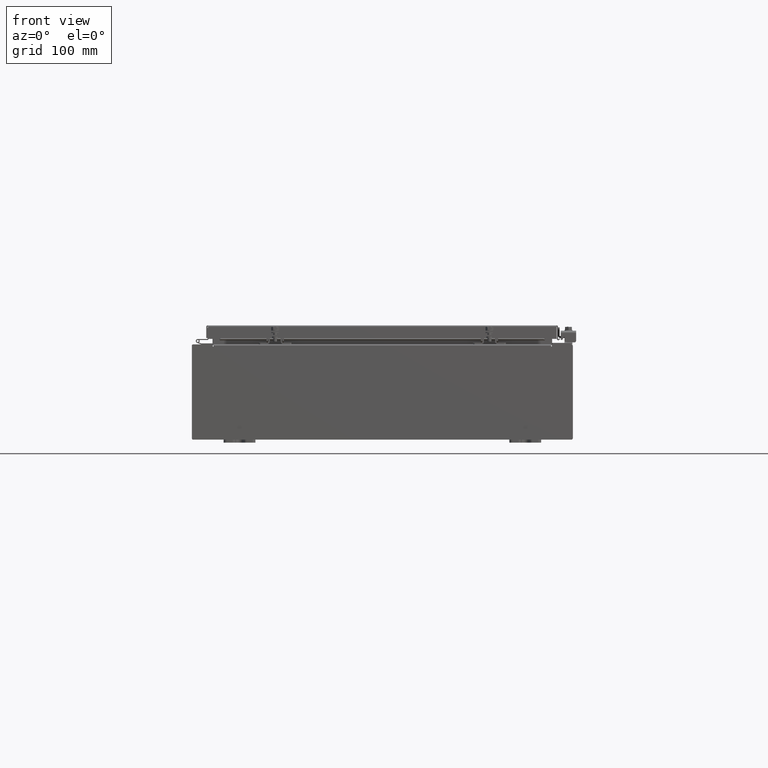
[diagram: clean part render]
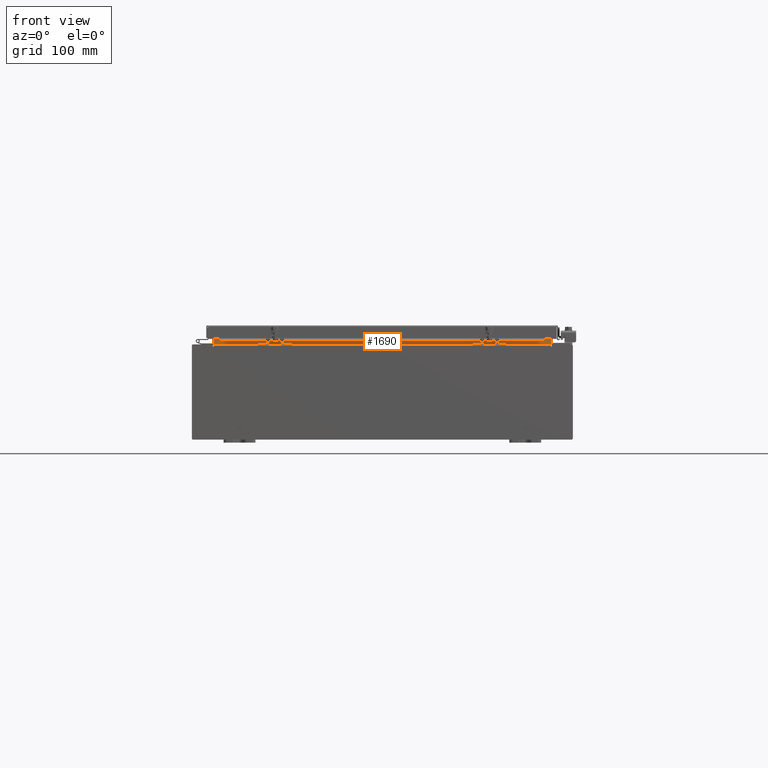
[diagram: same view with one face highlighted and labeled with its STEP entity id]
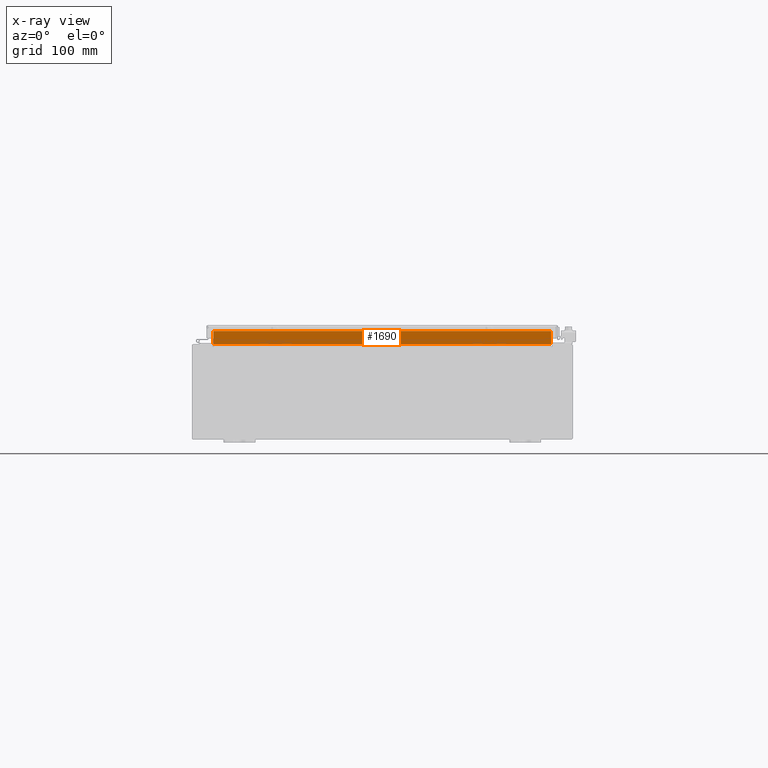
[diagram: x-ray of the same camera — body ghosted, the highlighted face saturated]
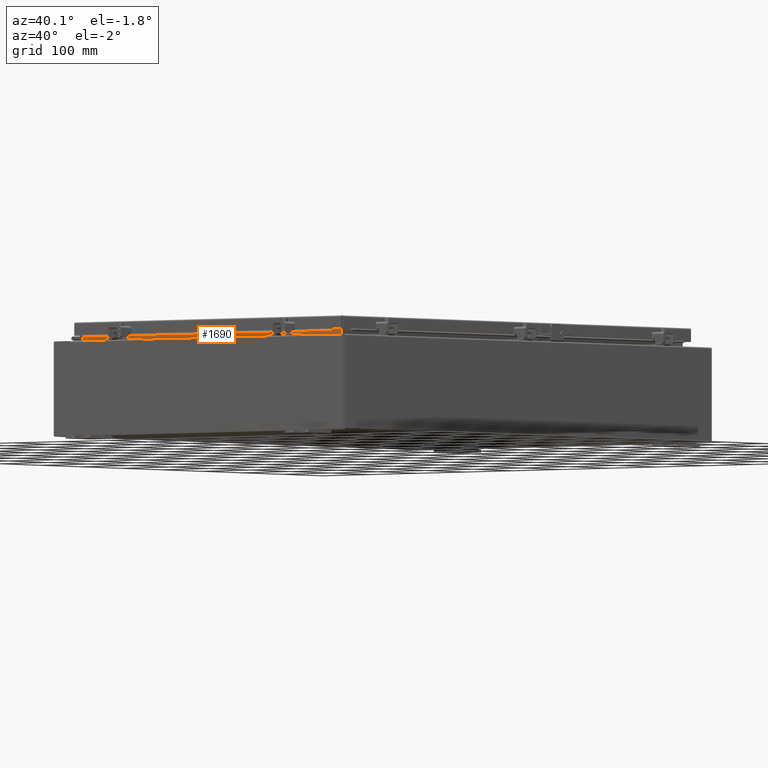
[diagram: same view with one face highlighted and labeled with its STEP entity id]
A machine part, front view. The second image highlights one B-rep face of the part: STEP entity #1690.
The next image is the same camera in x-ray: the body ghosted, the highlighted face saturated — about 0% of this face is hidden behind the body in this view.
A second angle (auxiliary view) of the same face is appended — the face is thin or edge-on in the first view.
In plain terms, the highlighted planar face has unit normal (0, -1, 0).
Its self-contained STEP definition (entity closure, byte-faithful):
#1363 = VERTEX_POINT ( 'NONE', #41265 ) ;
#1690 = ADVANCED_FACE ( 'NONE', ( #28186 ), #34851, .T. ) ;
#1901 = AXIS2_PLACEMENT_3D ( 'NONE', #11969, #41191, #41458 ) ;
#3140 = VERTEX_POINT ( 'NONE', #31091 ) ;
#6239 = CARTESIAN_POINT ( 'NONE',  ( 10.63720000000000200, -1.300299999999999800, 3.925300000000005300 ) ) ;
#7043 = ORIENTED_EDGE ( 'NONE', *, *, #12287, .F. ) ;
#7619 = DIRECTION ( 'NONE',  ( -0.0000000000000000000, -0.0000000000000000000, -1.000000000000000000 ) ) ;
#8341 = VERTEX_POINT ( 'NONE', #9733 ) ;
#8434 = VERTEX_POINT ( 'NONE', #18861 ) ;
#9616 = LINE ( 'NONE', #37137, #16846 ) ;
#9733 = CARTESIAN_POINT ( 'NONE',  ( -10.63720000000000400, -1.300299999999999800, 3.013000000000004800 ) ) ;
#11969 = CARTESIAN_POINT ( 'NONE',  ( 0.0000000000000000000, -1.300299999999999800, 0.0000000000000000000 ) ) ;
#12287 = EDGE_CURVE ( 'NONE', #8434, #1363, #20471, .T. ) ;
#13279 = DIRECTION ( 'NONE',  ( -1.000000000000000000, -0.0000000000000000000, -0.0000000000000000000 ) ) ;
#13691 = EDGE_CURVE ( 'NONE', #3140, #8341, #15890, .T. ) ;
#15323 = EDGE_LOOP ( 'NONE', ( #28243, #40224, #7043, #30441 ) ) ;
#15663 = CARTESIAN_POINT ( 'NONE',  ( -10.63720000000000200, -1.300299999999999800, 3.000000000000005300 ) ) ;
#15890 = LINE ( 'NONE', #15663, #20078 ) ;
#16846 = VECTOR ( 'NONE', #13279, 39.37007874015748100 ) ;
#17525 = EDGE_CURVE ( 'NONE', #1363, #3140, #9616, .T. ) ;
#18861 = CARTESIAN_POINT ( 'NONE',  ( 10.63720000000000400, -1.300299999999999800, 3.013000000000004800 ) ) ;
#20078 = VECTOR ( 'NONE', #7619, 39.37007874015748100 ) ;
#20471 = LINE ( 'NONE', #6239, #21181 ) ;
#20840 = DIRECTION ( 'NONE',  ( 1.000000000000000000, 0.0000000000000000000, -5.136404305013091600E-017 ) ) ;
#21071 = LINE ( 'NONE', #33698, #28767 ) ;
#21181 = VECTOR ( 'NONE', #25451, 39.37007874015748100 ) ;
#25451 = DIRECTION ( 'NONE',  ( -0.0000000000000000000, -0.0000000000000000000, 1.000000000000000000 ) ) ;
#28186 = FACE_OUTER_BOUND ( 'NONE', #15323, .T. ) ;
#28243 = ORIENTED_EDGE ( 'NONE', *, *, #13691, .F. ) ;
#28767 = VECTOR ( 'NONE', #20840, 39.37007874015748100 ) ;
#30441 = ORIENTED_EDGE ( 'NONE', *, *, #33657, .F. ) ;
#31091 = CARTESIAN_POINT ( 'NONE',  ( -10.63720000000000200, -1.300300000000000200, 3.837600000000005000 ) ) ;
#33657 = EDGE_CURVE ( 'NONE', #8341, #8434, #21071, .T. ) ;
#33698 = CARTESIAN_POINT ( 'NONE',  ( -10.63720000000000200, -1.300299999999999800, 3.013000000000005200 ) ) ;
#34851 = PLANE ( 'NONE',  #1901 ) ;
#37137 = CARTESIAN_POINT ( 'NONE',  ( 10.63720000000000200, -1.300300000000000200, 3.837600000000005000 ) ) ;
#40224 = ORIENTED_EDGE ( 'NONE', *, *, #17525, .F. ) ;
#41191 = DIRECTION ( 'NONE',  ( 0.0000000000000000000, 1.000000000000000000, 0.0000000000000000000 ) ) ;
#41265 = CARTESIAN_POINT ( 'NONE',  ( 10.63720000000000200, -1.300299999999999800, 3.837600000000005000 ) ) ;
#41458 = DIRECTION ( 'NONE',  ( 0.0000000000000000000, -0.0000000000000000000, 1.000000000000000000 ) ) ;